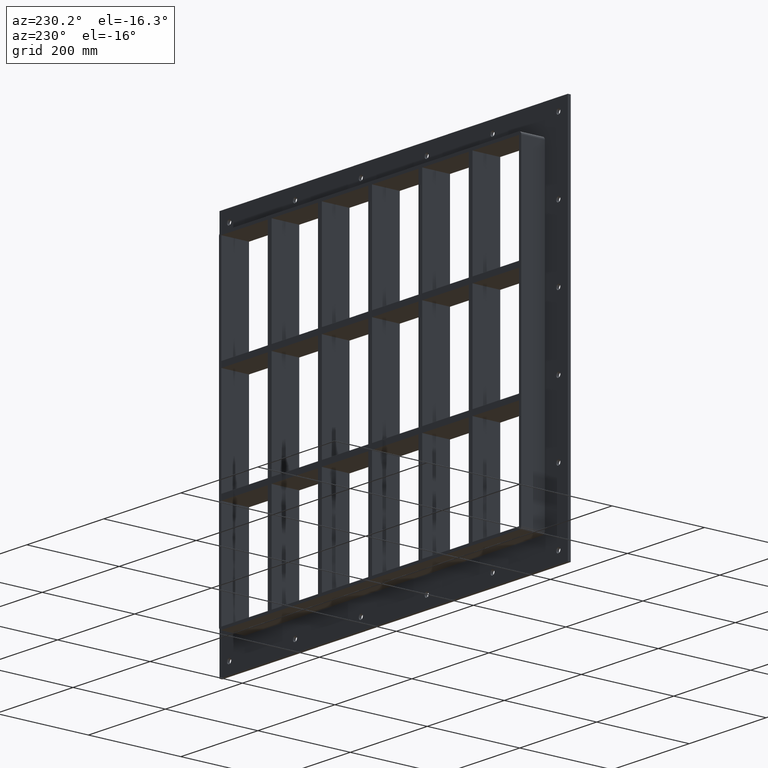
[diagram: clean part render]
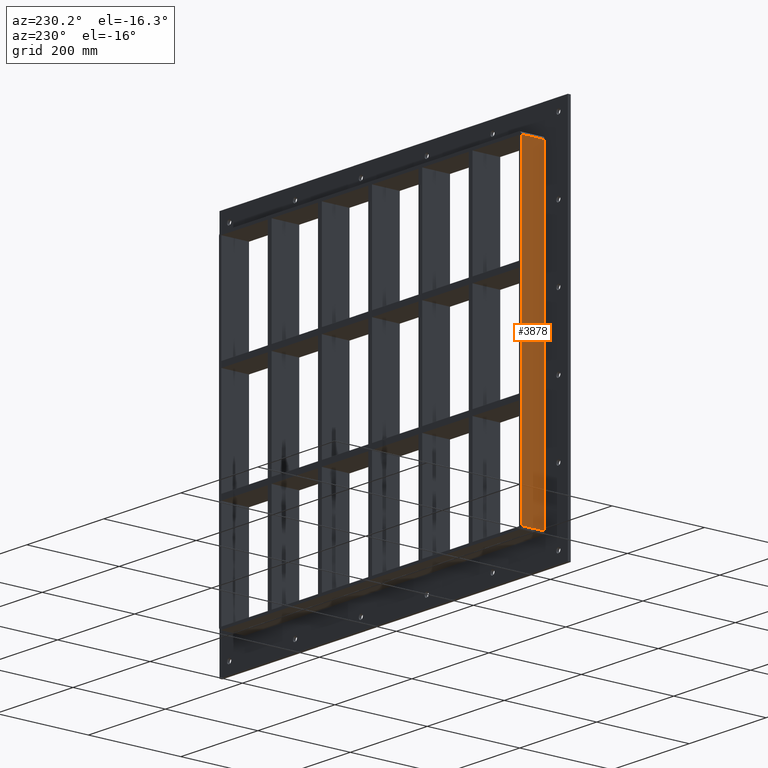
[diagram: same view with one face highlighted and labeled with its STEP entity id]
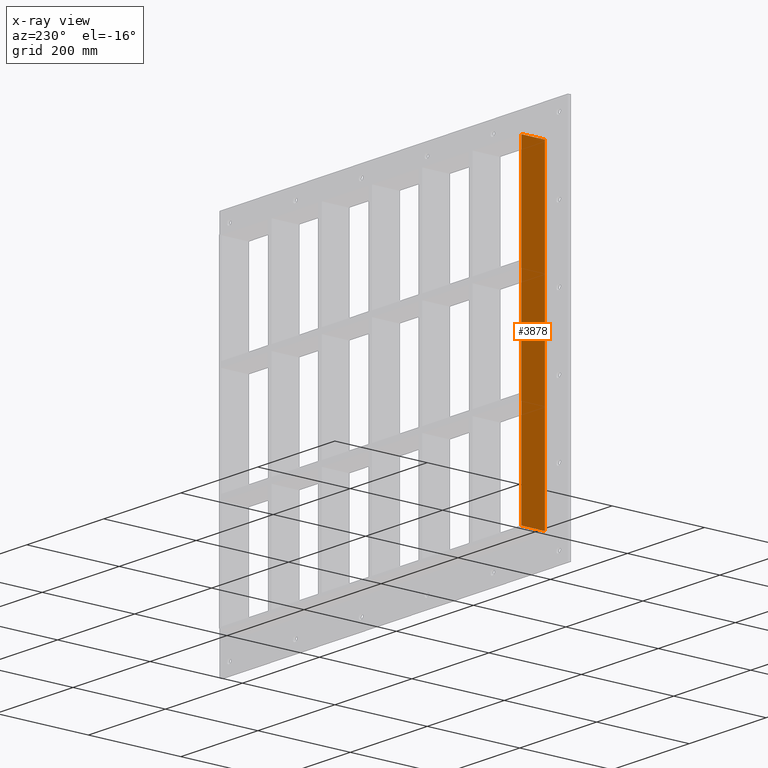
[diagram: x-ray of the same camera — body ghosted, the highlighted face saturated]
A machine part, auxiliary view. The second image highlights one B-rep face of the part: STEP entity #3878.
The next image is the same camera in x-ray: the body ghosted, the highlighted face saturated — about 0% of this face is hidden behind the body in this view.
In plain terms, the highlighted planar face has unit normal (-1, 0, 0).
Its self-contained STEP definition (entity closure, byte-faithful):
#1566=CARTESIAN_POINT('',(-392.50000000000006,57.0,-339.00000000000023));
#1567=VERTEX_POINT('',#1566);
#1575=CARTESIAN_POINT('',(-392.50000000000006,57.0,338.99999999999989));
#1576=VERTEX_POINT('',#1575);
#1577=CARTESIAN_POINT('',(-392.50000000000006,57.0,-339.00000000000017));
#1578=DIRECTION('',(0.0,0.0,1.0));
#1579=VECTOR('',#1578,678.0);
#1580=LINE('',#1577,#1579);
#1581=EDGE_CURVE('',#1567,#1576,#1580,.T.);
#3317=CARTESIAN_POINT('',(-392.50000000000006,6.000000000000001,-339.00000000000023));
#3318=VERTEX_POINT('',#3317);
#3368=CARTESIAN_POINT('',(-392.50000000000006,6.000000000000001,338.99999999999989));
#3369=VERTEX_POINT('',#3368);
#3377=CARTESIAN_POINT('',(-392.50000000000006,6.000000000000001,-339.00000000000023));
#3378=DIRECTION('',(0.0,0.0,1.0));
#3379=VECTOR('',#3378,678.00000000000023);
#3380=LINE('',#3377,#3379);
#3381=EDGE_CURVE('',#3318,#3369,#3380,.T.);
#3851=CARTESIAN_POINT('',(-392.50000000000006,6.000000000000001,-339.00000000000023));
#3852=DIRECTION('',(0.0,1.0,0.0));
#3853=VECTOR('',#3852,51.0);
#3854=LINE('',#3851,#3853);
#3855=EDGE_CURVE('',#3318,#1567,#3854,.T.);
#3862=CARTESIAN_POINT('',(-392.50000000000006,0.0,-345.00000000000011));
#3863=DIRECTION('',(-1.0,0.0,0.0));
#3864=DIRECTION('',(0.0,0.0,1.0));
#3865=AXIS2_PLACEMENT_3D('',#3862,#3863,#3864);
#3866=PLANE('',#3865);
#3867=ORIENTED_EDGE('',*,*,#3381,.T.);
#3868=CARTESIAN_POINT('',(-392.50000000000006,57.0,338.99999999999989));
#3869=DIRECTION('',(0.0,-1.0,0.0));
#3870=VECTOR('',#3869,51.0);
#3871=LINE('',#3868,#3870);
#3872=EDGE_CURVE('',#1576,#3369,#3871,.T.);
#3873=ORIENTED_EDGE('',*,*,#3872,.F.);
#3874=ORIENTED_EDGE('',*,*,#1581,.F.);
#3875=ORIENTED_EDGE('',*,*,#3855,.F.);
#3876=EDGE_LOOP('',(#3867,#3873,#3874,#3875));
#3877=FACE_OUTER_BOUND('',#3876,.T.);
#3878=ADVANCED_FACE('',(#3877),#3866,.T.);